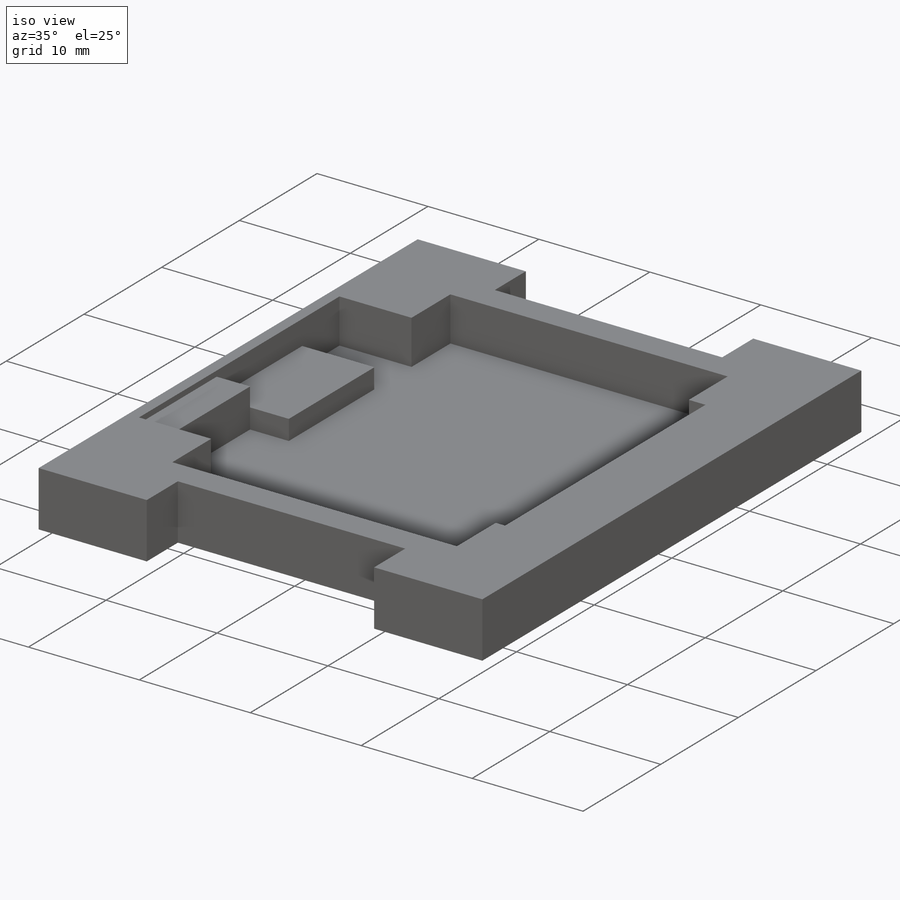
[diagram: iso view]
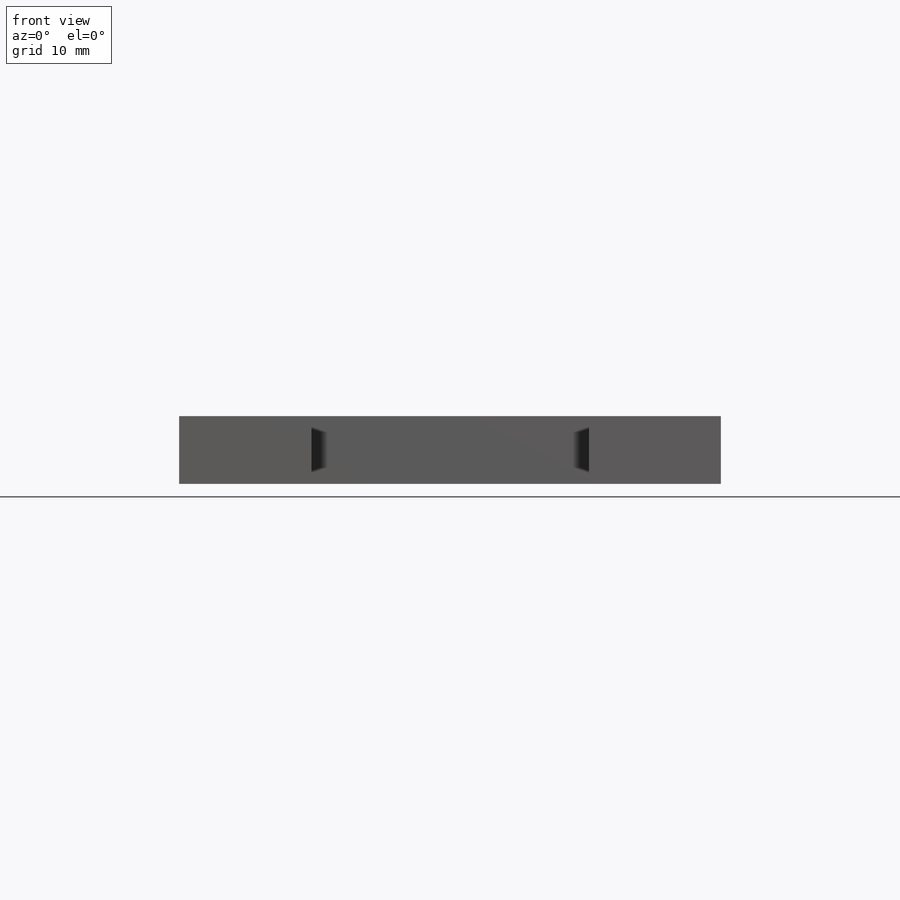
[diagram: front view]
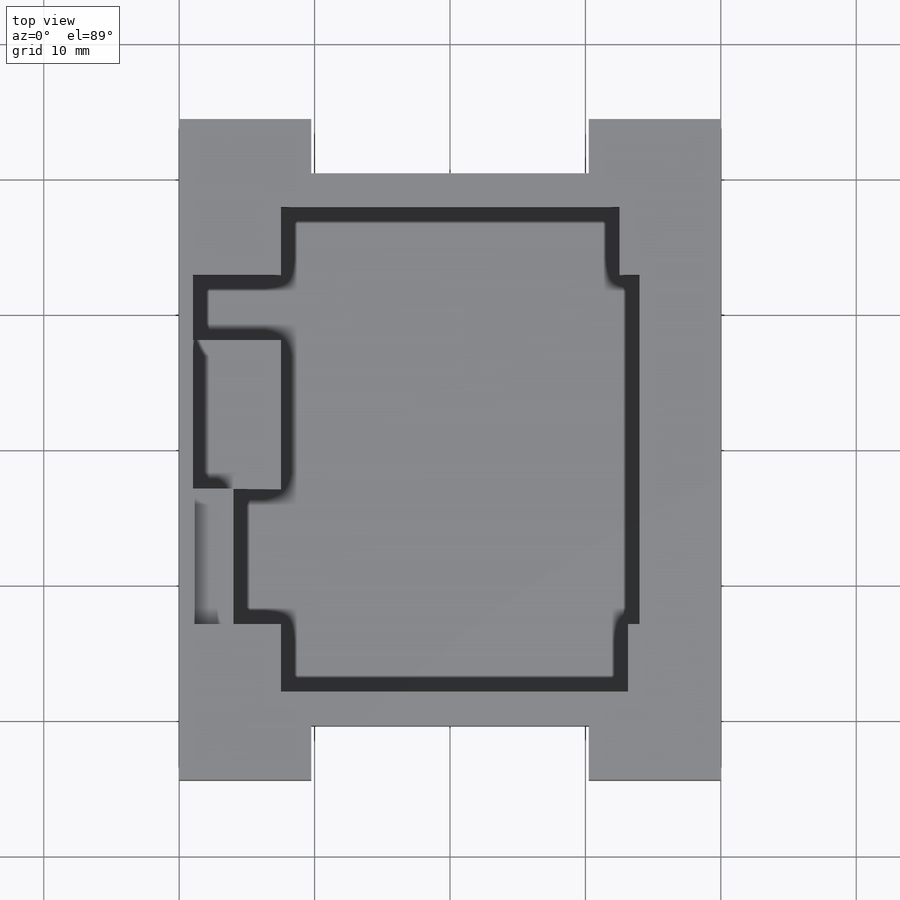
[diagram: top view]
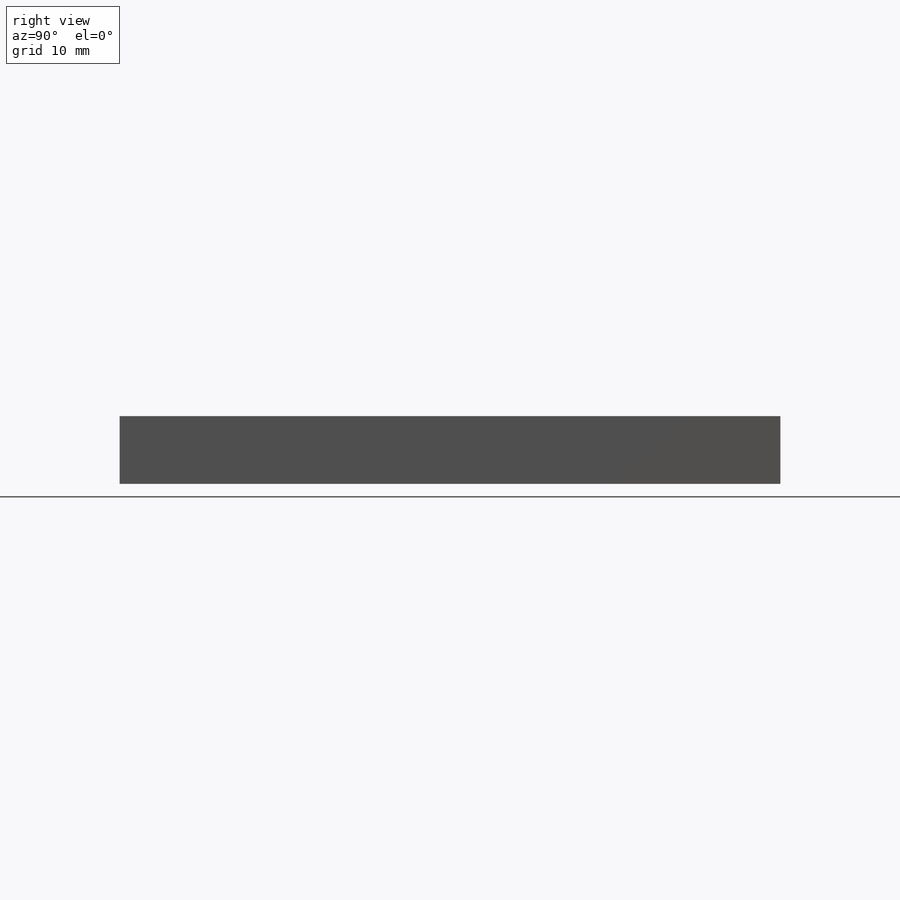
[diagram: right view]
SOLIDWORKS PART (.sldprt)
format: sldprt  version: not decoded by parser v0  size: 2,578,944 bytes
history: native  units: mm
features: sketch x8, extrude x7, material x1, cut_extrude x1 (+14 scaffold rows collapsed; 1 parser-record rows omitted)
feature tree (32):
  scaffold x14  (default folders/planes/origin — collapsed)
  material  "Material <not specified>"
  sketch  "Sketch1"  dims[D1=40.0mm D2=48.8mm]
  extrude  "Boss-Extrude1"  Depth=1mm
  sketch  "Sketch2"  dims[D1=38.0mm D2=35.8mm]
  extrude  "Boss-Extrude2"  Depth=4mm
  sketch  "Sketch3"  dims[D1=20.5mm D2=8.0mm]
  cut_extrude  "Cut-Extrude1"  [1 undecoded]
  sketch  "Sketch4"  dims[D1=5.0mm D2=6.5mm D3=5.0mm D4=6.5mm]
  extrude  "Boss-Extrude3"  [1 undecoded]
  sketch  "Sketch5"  dims[D1=7.0mm D2=16.3mm D3=21.5mm]
  extrude  "Boss-Extrude4"  Depth=2.8mm
  sketch  "Sketch7"  dims[D1=4.5mm]
  extrude  "Boss-Extrude5"  Depth=4mm _TNextInd=40 _TCompTag=0mm _TElemType=0mm
  extrude  "_TAttDefEntBased2"  Depth=0mm _TCompTag=0mm
  extrude  "_TAttDefNameBased2"  Depth=0mm _TCompTag=0mm
  parser-record x1  (decoder bookkeeping rows leaked as tree rows — omitted from the tree; the rows remain in map.json)
  sketch  "Sketch_MAC1-1_BOTTOM CASE_MILLING"
  sketch  "Stock_BOTTOM CASE_MILLING"  dims[c1._TCompTag=0.0mm c2._TCompTag=0.0mm c3._TCompTag=0.0mm c4._TCompTag=0.0mm c5._TCompTag=0.0mm c6._TCompTag=0.0mm c7._TCompTag=0.0mm c8._TCompTag=0.0mm c9._TCompTag=0.0mm c10._TCompTag=0.0mm c11._TCompTag=0.0mm c12._TCompTag=0.0mm c13._TCompTag=0.0mm c14._TCompTag=0.0mm c15._TCompTag=0.0mm c16._TCompTag=0.0mm c17._TCompTag=0.0mm c18._TCompTag=0.0mm c19._TCompTag=0.0mm c20._TCompTag=0.0mm c21._TCompTag=0.0mm c22._TCompTag=0.0mm c23._TCompTag=0.0mm c24._TCompTag=0.0mm c25._TCompTag=0.0mm c26._TCompTag=0.0mm c27._TCompTag=0.0mm c28._TCompTag=0.0mm c29._TCompTag=0.0mm c30._TCompTag=0.0mm c31._TCompTag=0.0mm c32._TCompTag=0.0mm c33._TCompTag=0.0mm c34._TCompTag=0.0mm c35._TCompTag=0.0mm]
decode coverage: 13 of 16 modeling features carry decoded parameters
note: 2 parameter values undecoded
note: suppression state not decoded; provenance and decode notes live in map.json
